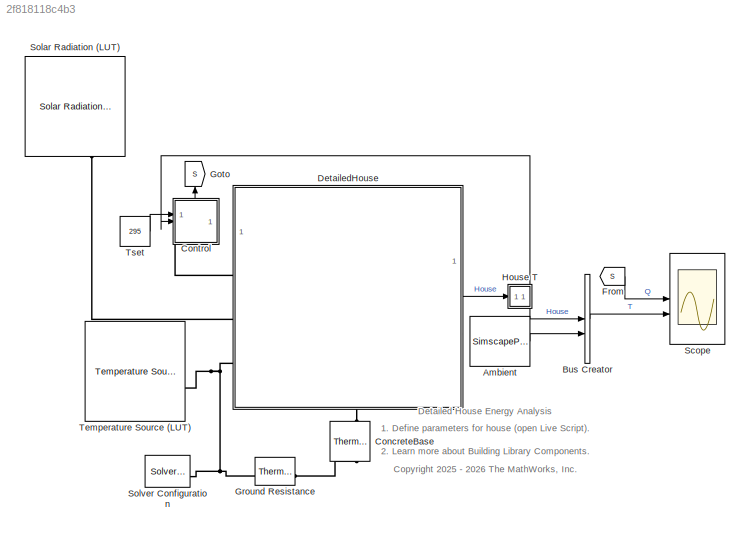
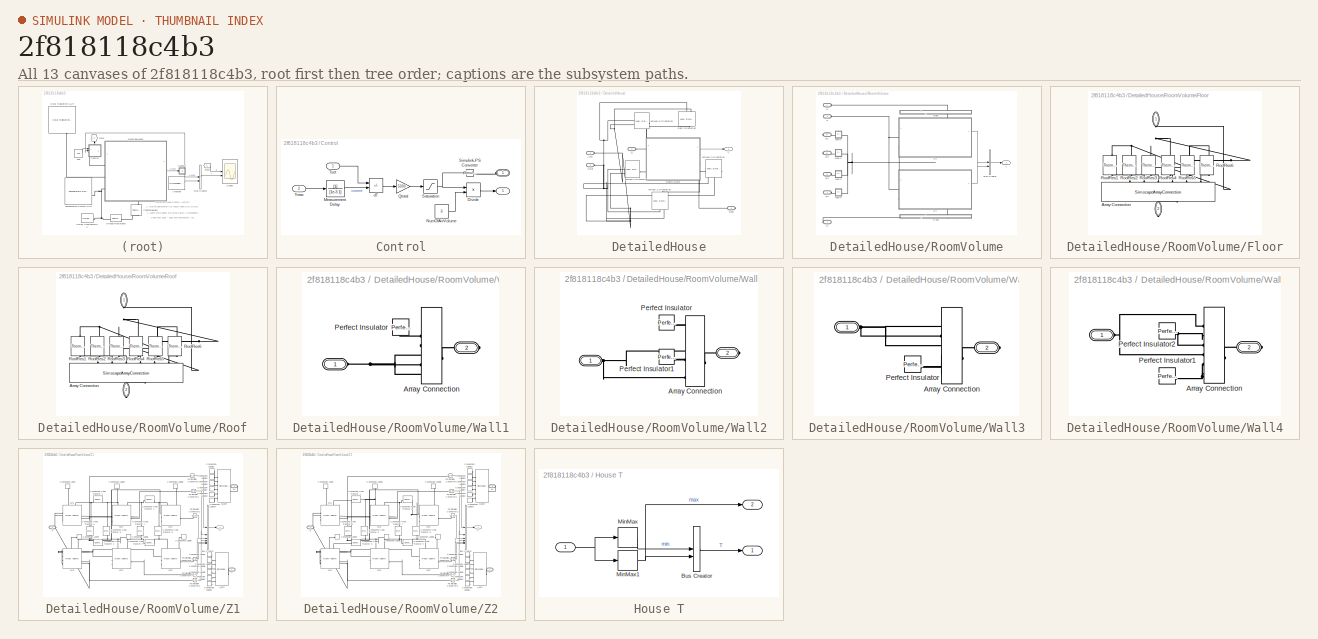
[diagram: thumbnail index - all 13 canvases of the model, root first then tree order]
MODEL slx_2f818118c4b3
KIND model
CONFIG AbsTol = auto
CONFIG EnableMultiTasking = off
CONFIG FixedStep = auto
CONFIG MaxStep = 60
CONFIG MinStep = auto
CONFIG PreLoadFcn = run("DetailedHouseParameters.mlx");
CONFIG RelTol = 1e-3
CONFIG SampleTimeConstraint = Unconstrained
CONFIG SolverName = daessc
CONFIG StartTime = 0.0
CONFIG StopTime = house.operational.datetime.simRunTimeSeconds
BLOCK [SimscapeProbe] Ambient
  BoundBlock = 326
  Variables = {H.T}
BLOCK [BusCreator] Bus Creator
  DisplayOption = bar
  InheritFromInputs = on
  Inputs = 2
BLOCK [Reference] ConcreteBase  REF=fl_lib/Thermal/Thermal Elements/Thermal Mass
  NameLocation = right
  SourceBlock = fl_lib/Thermal/Thermal Elements/Thermal Mass
  SourceType = Thermal Mass
BLOCK [SubSystem] Control
  PortSchema = {"entries":[{"content":{"sides":[{"content":{"connectorIds":["LConn1"]},"type":"ConnectorPlacement.EquallySpacedRectSide","uuid":"bf0d3f6c-4199-48ed-9d1b-942d678a196d"},{"content":{"connectorIds":["In1","In2"],"side":"RIGHT"},"type":"ConnectorPlacement.EquallySpacedRectSide","uuid":"048b5b2b-ccfc-4083-80b1-51c1896923e2"},{"content":{"side":"TOP"},"type":"ConnectorPlacement.EquallySpacedRectSide","...<+380ch>
BLOCK [Outport] Control/ 
BLOCK [PMIOPort] Control/  
  NameLocation = right
  Side = Left
BLOCK [Product] Control/Divide
  Inputs = */
BLOCK [TransferFcn] Control/Measurement Delay
  Denominator = [1e-3 1]
BLOCK [Constant] Control/NumOfAirVolume
  Value = 6
BLOCK [Gain] Control/Qtotal
  Gain = 5000
BLOCK [Saturate] Control/Saturation
  LowerLimit = -2500
  UpperLimit = 2500
BLOCK [Reference] Control/Simulink-PS Converter  REF=nesl_utility/Simulink-PS
Converter
  SourceBlock = nesl_utility/Simulink-PS\nConverter
  SourceType = Simulink-PS\nConverter
BLOCK [Inport] Control/Tmax
  NameLocation = left
  Port = 2
BLOCK [Inport] Control/Tset
  NameLocation = left
BLOCK [Sum] Control/dT
  IconShape = rectangular
  Inputs = +-
BLOCK [SubSystem] DetailedHouse
  NameLocation = top
  PortSchema = {"entries":[{"content":{"sides":[{"content":{"connectorIds":["LConn1","LConn2","LConn3"]},"type":"ConnectorPlacement.EquallySpacedRectSide","uuid":"299cb99e-37c4-4363-a148-c4e2a80bfd54"},{"content":{"connectorIds":["Out1"],"side":"RIGHT"},"type":"ConnectorPlacement.EquallySpacedRectSide","uuid":"2fcdd946-1002-4526-8c08-99e8dc6f4c47"},{"content":{"side":"TOP"},"type":"ConnectorPlacement.EquallySpac...<+395ch>
BLOCK [PMIOPort] DetailedHouse/Amb
  NameLocation = left
  Port = 3
  Side = Left
BLOCK [PMIOPort] DetailedHouse/Floor
  NameLocation = right
  Port = 4
  Side = Right
BLOCK [PMIOPort] DetailedHouse/Q
  NameLocation = left
  Side = Left
BLOCK [Reference] DetailedHouse/Roof Orientation  REF=ExternalWall_lib/Wall External
  NameLocation = right
  SourceBlock = ExternalWall_lib/Wall External
  SourceType = Wall External
BLOCK [SubSystem] DetailedHouse/RoomVolume
  NameLocation = top
  PortSchema = {"entries":[{"content":{"sides":[{"content":{"connectorIds":["LConn1","LConn2"]},"type":"ConnectorPlacement.EquallySpacedRectSide","uuid":"bb55eb80-d4a7-43ce-a7a0-972e6a4ef911"},{"content":{"connectorIds":["Out1","RConn1"],"side":"RIGHT"},"type":"ConnectorPlacement.EquallySpacedRectSide","uuid":"29951cfd-9715-464b-88ca-0c0ac5d49cc2"},{"content":{"connectorIds":["LConn3","LConn4"],"side":"TOP"},"ty...<+439ch>
BLOCK [BusCreator] DetailedHouse/RoomVolume/Bus Creator
  DisplayOption = bar
  InheritFromInputs = on
  Inputs = 2
BLOCK [SubSystem] DetailedHouse/RoomVolume/Floor
  NameLocation = right
BLOCK [PMIOPort] DetailedHouse/RoomVolume/Floor/ 
  NameLocation = left
  Side = Left
BLOCK [PMIOPort] DetailedHouse/RoomVolume/Floor/   
  NameLocation = right
  Port = 2
  Side = Right
BLOCK [SimscapeArrayConnection] DetailedHouse/RoomVolume/Floor/Array Connection
  ConcatenateDimension = 1
  Domain = foundation.thermal.thermal
  NameLocation = left
  NumScalarElements = 6
BLOCK [Reference] DetailedHouse/RoomVolume/Floor/RoofRes1  REF=fl_lib/Thermal/Thermal Elements/Thermal Resistance
  NameLocation = left
  SourceBlock = fl_lib/Thermal/Thermal Elements/Thermal Resistance
  SourceType = Thermal Resistance
BLOCK [Reference] DetailedHouse/RoomVolume/Floor/RoofRes2  REF=fl_lib/Thermal/Thermal Elements/Thermal Resistance
  NameLocation = left
  SourceBlock = fl_lib/Thermal/Thermal Elements/Thermal Resistance
  SourceType = Thermal Resistance
BLOCK [Reference] DetailedHouse/RoomVolume/Floor/RoofRes3  REF=fl_lib/Thermal/Thermal Elements/Thermal Resistance
  NameLocation = left
  SourceBlock = fl_lib/Thermal/Thermal Elements/Thermal Resistance
  SourceType = Thermal Resistance
BLOCK [Reference] DetailedHouse/RoomVolume/Floor/RoofRes4  REF=fl_lib/Thermal/Thermal Elements/Thermal Resistance
  NameLocation = left
  SourceBlock = fl_lib/Thermal/Thermal Elements/Thermal Resistance
  SourceType = Thermal Resistance
BLOCK [Reference] DetailedHouse/RoomVolume/Floor/RoofRes5  REF=fl_lib/Thermal/Thermal Elements/Thermal Resistance
  NameLocation = left
  SourceBlock = fl_lib/Thermal/Thermal Elements/Thermal Resistance
  SourceType = Thermal Resistance
BLOCK [Reference] DetailedHouse/RoomVolume/Floor/RoofRes6  REF=fl_lib/Thermal/Thermal Elements/Thermal Resistance
  NameLocation = left
  SourceBlock = fl_lib/Thermal/Thermal Elements/Thermal Resistance
  SourceType = Thermal Resistance
BLOCK [PMIOPort] DetailedHouse/RoomVolume/G
  NameLocation = left
  Port = 7
  Side = Right
BLOCK [PMIOPort] DetailedHouse/RoomVolume/R
  NameLocation = left
  Port = 4
  Side = Left
BLOCK [SubSystem] DetailedHouse/RoomVolume/Roof
  NameLocation = right
BLOCK [PMIOPort] DetailedHouse/RoomVolume/Roof/ 
  NameLocation = left
  Side = Left
BLOCK [PMIOPort] DetailedHouse/RoomVolume/Roof/   
  NameLocation = right
  Port = 2
  Side = Right
BLOCK [SimscapeArrayConnection] DetailedHouse/RoomVolume/Roof/Array Connection
  ConcatenateDimension = 1
  Domain = foundation.thermal.thermal
  NameLocation = left
  NumScalarElements = 6
BLOCK [Reference] DetailedHouse/RoomVolume/Roof/RoofRes1  REF=fl_lib/Thermal/Thermal Elements/Thermal Resistance
  NameLocation = left
  SourceBlock = fl_lib/Thermal/Thermal Elements/Thermal Resistance
  SourceType = Thermal Resistance
BLOCK [Reference] DetailedHouse/RoomVolume/Roof/RoofRes2  REF=fl_lib/Thermal/Thermal Elements/Thermal Resistance
  NameLocation = left
  SourceBlock = fl_lib/Thermal/Thermal Elements/Thermal Resistance
  SourceType = Thermal Resistance
BLOCK [Reference] DetailedHouse/RoomVolume/Roof/RoofRes3  REF=fl_lib/Thermal/Thermal Elements/Thermal Resistance
  NameLocation = left
  SourceBlock = fl_lib/Thermal/Thermal Elements/Thermal Resistance
  SourceType = Thermal Resistance
BLOCK [Reference] DetailedHouse/RoomVolume/Roof/RoofRes4  REF=fl_lib/Thermal/Thermal Elements/Thermal Resistance
  NameLocation = left
  SourceBlock = fl_lib/Thermal/Thermal Elements/Thermal Resistance
  SourceType = Thermal Resistance
BLOCK [Reference] DetailedHouse/RoomVolume/Roof/RoofRes5  REF=fl_lib/Thermal/Thermal Elements/Thermal Resistance
  NameLocation = left
  SourceBlock = fl_lib/Thermal/Thermal Elements/Thermal Resistance
  SourceType = Thermal Resistance
BLOCK [Reference] DetailedHouse/RoomVolume/Roof/RoofRes6  REF=fl_lib/Thermal/Thermal Elements/Thermal Resistance
  NameLocation = left
  SourceBlock = fl_lib/Thermal/Thermal Elements/Thermal Resistance
  SourceType = Thermal Resistance
BLOCK [PMIOPort] DetailedHouse/RoomVolume/S
  NameLocation = left
  Side = Left
BLOCK [Outport] DetailedHouse/RoomVolume/T
BLOCK [SubSystem] DetailedHouse/RoomVolume/Wall1
BLOCK [PMIOPort] DetailedHouse/RoomVolume/Wall1/ 
  Side = Left
BLOCK [PMIOPort] DetailedHouse/RoomVolume/Wall1/  
  Port = 2
  Side = Right
BLOCK [SimscapeArrayConnection] DetailedHouse/RoomVolume/Wall1/Array Connection
  ConcatenateDimension = 1
  Domain = foundation.thermal.thermal
  NumScalarElements = 6
BLOCK [Reference] DetailedHouse/RoomVolume/Wall1/Perfect Insulator  REF=fl_lib/Thermal/Thermal Elements/Perfect Insulator
  SourceBlock = fl_lib/Thermal/Thermal Elements/Perfect Insulator
  SourceType = Perfect Insulator
BLOCK [SubSystem] DetailedHouse/RoomVolume/Wall2
BLOCK [PMIOPort] DetailedHouse/RoomVolume/Wall2/ 
  Side = Left
BLOCK [PMIOPort] DetailedHouse/RoomVolume/Wall2/  
  Port = 2
  Side = Right
BLOCK [SimscapeArrayConnection] DetailedHouse/RoomVolume/Wall2/Array Connection
  ConcatenateDimension = 1
  Domain = foundation.thermal.thermal
  NumScalarElements = 6
BLOCK [Reference] DetailedHouse/RoomVolume/Wall2/Perfect Insulator  REF=fl_lib/Thermal/Thermal Elements/Perfect Insulator
  SourceBlock = fl_lib/Thermal/Thermal Elements/Perfect Insulator
  SourceType = Perfect Insulator
BLOCK [Reference] DetailedHouse/RoomVolume/Wall2/Perfect Insulator1  REF=fl_lib/Thermal/Thermal Elements/Perfect Insulator
  SourceBlock = fl_lib/Thermal/Thermal Elements/Perfect Insulator
  SourceType = Perfect Insulator
BLOCK [SubSystem] DetailedHouse/RoomVolume/Wall3
BLOCK [PMIOPort] DetailedHouse/RoomVolume/Wall3/ 
  Side = Left
BLOCK [PMIOPort] DetailedHouse/RoomVolume/Wall3/  
  Port = 2
  Side = Right
BLOCK [SimscapeArrayConnection] DetailedHouse/RoomVolume/Wall3/Array Connection
  ConcatenateDimension = 1
  Domain = foundation.thermal.thermal
  NumScalarElements = 6
BLOCK [Reference] DetailedHouse/RoomVolume/Wall3/Perfect Insulator  REF=fl_lib/Thermal/Thermal Elements/Perfect Insulator
  SourceBlock = fl_lib/Thermal/Thermal Elements/Perfect Insulator
  SourceType = Perfect Insulator
BLOCK [SubSystem] DetailedHouse/RoomVolume/Wall4
BLOCK [PMIOPort] DetailedHouse/RoomVolume/Wall4/ 
  Side = Left
BLOCK [PMIOPort] DetailedHouse/RoomVolume/Wall4/  
  Port = 2
  Side = Right
BLOCK [SimscapeArrayConnection] DetailedHouse/RoomVolume/Wall4/Array Connection
  ConcatenateDimension = 1
  Domain = foundation.thermal.thermal
  NumScalarElements = 6
BLOCK [Reference] DetailedHouse/RoomVolume/Wall4/Perfect Insulator1  REF=fl_lib/Thermal/Thermal Elements/Perfect Insulator
  SourceBlock = fl_lib/Thermal/Thermal Elements/Perfect Insulator
  SourceType = Perfect Insulator
BLOCK [Reference] DetailedHouse/RoomVolume/Wall4/Perfect Insulator2  REF=fl_lib/Thermal/Thermal Elements/Perfect Insulator
  SourceBlock = fl_lib/Thermal/Thermal Elements/Perfect Insulator
  SourceType = Perfect Insulator
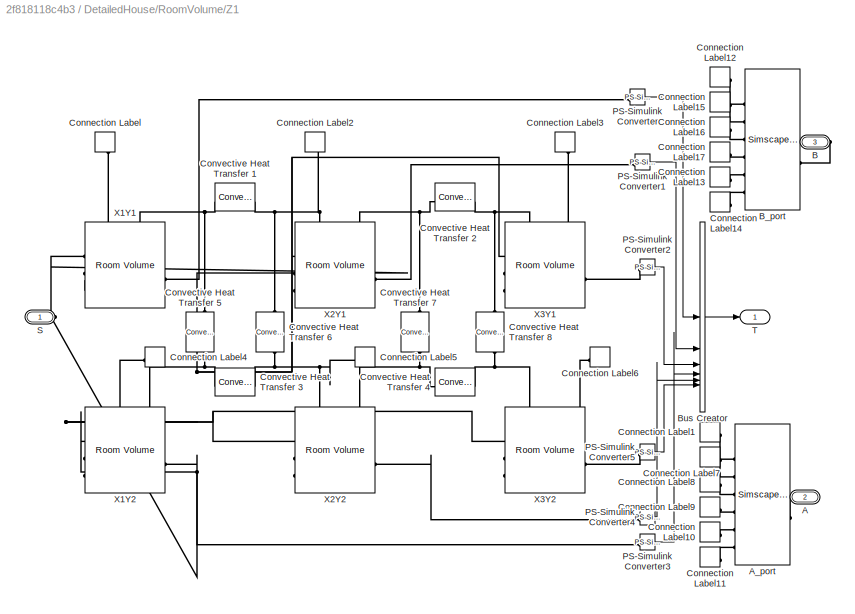
BLOCK [SubSystem] DetailedHouse/RoomVolume/Z1
  PortSchema = {"entries":[{"content":{"sides":[{"content":{"connectorIds":["LConn1"]},"type":"ConnectorPlacement.EquallySpacedRectSide","uuid":"abda2a5f-a08e-4671-9591-108164548e43"},{"content":{"connectorIds":["Out1"],"side":"RIGHT"},"type":"ConnectorPlacement.EquallySpacedRectSide","uuid":"2c40f8a6-94c6-4189-9220-8c37a1cf6112"},{"content":{"connectorIds":["LConn2"],"side":"TOP"},"type":"ConnectorPlacement.Equ...<+403ch>
BLOCK [PMIOPort] DetailedHouse/RoomVolume/Z1/A
  NameLocation = top
  Port = 2
  Side = Left
BLOCK [SimscapeArrayConnection] DetailedHouse/RoomVolume/Z1/A_port
  ConcatenateDimension = 1
  Domain = foundation.thermal.thermal
  NumScalarElements = 6
BLOCK [PMIOPort] DetailedHouse/RoomVolume/Z1/B
  NameLocation = top
  Port = 3
  Side = Right
BLOCK [SimscapeArrayConnection] DetailedHouse/RoomVolume/Z1/B_port
  ConcatenateDimension = 1
  Domain = foundation.thermal.thermal
  NumScalarElements = 6
BLOCK [BusCreator] DetailedHouse/RoomVolume/Z1/Bus Creator
  DisplayOption = bar
  InheritFromInputs = on
  Inputs = 6
BLOCK [ConnectionLabel] DetailedHouse/RoomVolume/Z1/Connection Label
  Label = A1
  NameLocation = right
BLOCK [ConnectionLabel] DetailedHouse/RoomVolume/Z1/Connection Label1
  Label = A1
  NameLocation = top
BLOCK [ConnectionLabel] DetailedHouse/RoomVolume/Z1/Connection Label10
  Label = A5
  NameLocation = top
BLOCK [ConnectionLabel] DetailedHouse/RoomVolume/Z1/Connection Label11
  Label = A6
  NameLocation = top
BLOCK [ConnectionLabel] DetailedHouse/RoomVolume/Z1/Connection Label12
  Label = A1
  NameLocation = top
BLOCK [ConnectionLabel] DetailedHouse/RoomVolume/Z1/Connection Label13
  Label = A5
  NameLocation = top
BLOCK [ConnectionLabel] DetailedHouse/RoomVolume/Z1/Connection Label14
  Label = A6
  NameLocation = top
BLOCK [ConnectionLabel] DetailedHouse/RoomVolume/Z1/Connection Label15
  Label = A2
  NameLocation = top
BLOCK [ConnectionLabel] DetailedHouse/RoomVolume/Z1/Connection Label16
  Label = A3
  NameLocation = top
BLOCK [ConnectionLabel] DetailedHouse/RoomVolume/Z1/Connection Label17
  Label = A4
  NameLocation = top
BLOCK [ConnectionLabel] DetailedHouse/RoomVolume/Z1/Connection Label2
  Label = A2
  NameLocation = right
BLOCK [ConnectionLabel] DetailedHouse/RoomVolume/Z1/Connection Label3
  Label = A3
  NameLocation = right
BLOCK [ConnectionLabel] DetailedHouse/RoomVolume/Z1/Connection Label4
  Label = A4
BLOCK [ConnectionLabel] DetailedHouse/RoomVolume/Z1/Connection Label5
  Label = A5
BLOCK [ConnectionLabel] DetailedHouse/RoomVolume/Z1/Connection Label6
  Label = A6
BLOCK [ConnectionLabel] DetailedHouse/RoomVolume/Z1/Connection Label7
  Label = A2
  NameLocation = top
BLOCK [ConnectionLabel] DetailedHouse/RoomVolume/Z1/Connection Label8
  Label = A3
  NameLocation = top
BLOCK [ConnectionLabel] DetailedHouse/RoomVolume/Z1/Connection Label9
  Label = A4
  NameLocation = top
BLOCK [Reference] DetailedHouse/RoomVolume/Z1/Convective Heat Transfer 1  REF=fl_lib/Thermal/Thermal Elements/Convective Heat
Transfer
  SourceBlock = fl_lib/Thermal/Thermal Elements/Convective Heat\nTransfer
  SourceType = Convective Heat\nTransfer
BLOCK [Reference] DetailedHouse/RoomVolume/Z1/Convective Heat Transfer 2  REF=fl_lib/Thermal/Thermal Elements/Convective Heat
Transfer
  SourceBlock = fl_lib/Thermal/Thermal Elements/Convective Heat\nTransfer
  SourceType = Convective Heat\nTransfer
BLOCK [Reference] DetailedHouse/RoomVolume/Z1/Convective Heat Transfer 3  REF=fl_lib/Thermal/Thermal Elements/Convective Heat
Transfer
  SourceBlock = fl_lib/Thermal/Thermal Elements/Convective Heat\nTransfer
  SourceType = Convective Heat\nTransfer
BLOCK [Reference] DetailedHouse/RoomVolume/Z1/Convective Heat Transfer 4  REF=fl_lib/Thermal/Thermal Elements/Convective Heat
Transfer
  SourceBlock = fl_lib/Thermal/Thermal Elements/Convective Heat\nTransfer
  SourceType = Convective Heat\nTransfer
BLOCK [Reference] DetailedHouse/RoomVolume/Z1/Convective Heat Transfer 5  REF=fl_lib/Thermal/Thermal Elements/Convective Heat
Transfer
  NameLocation = left
  SourceBlock = fl_lib/Thermal/Thermal Elements/Convective Heat\nTransfer
  SourceType = Convective Heat\nTransfer
BLOCK [Reference] DetailedHouse/RoomVolume/Z1/Convective Heat Transfer 6  REF=fl_lib/Thermal/Thermal Elements/Convective Heat
Transfer
  NameLocation = left
  SourceBlock = fl_lib/Thermal/Thermal Elements/Convective Heat\nTransfer
  SourceType = Convective Heat\nTransfer
BLOCK [Reference] DetailedHouse/RoomVolume/Z1/Convective Heat Transfer 7  REF=fl_lib/Thermal/Thermal Elements/Convective Heat
Transfer
  NameLocation = left
  SourceBlock = fl_lib/Thermal/Thermal Elements/Convective Heat\nTransfer
  SourceType = Convective Heat\nTransfer
BLOCK [Reference] DetailedHouse/RoomVolume/Z1/Convective Heat Transfer 8  REF=fl_lib/Thermal/Thermal Elements/Convective Heat
Transfer
  NameLocation = left
  SourceBlock = fl_lib/Thermal/Thermal Elements/Convective Heat\nTransfer
  SourceType = Convective Heat\nTransfer
BLOCK [Reference] DetailedHouse/RoomVolume/Z1/PS-Simulink Converter  REF=nesl_utility/PS-Simulink
Converter
  SourceBlock = nesl_utility/PS-Simulink\nConverter
  SourceType = PS-Simulink\nConverter
BLOCK [Reference] DetailedHouse/RoomVolume/Z1/PS-Simulink Converter1  REF=nesl_utility/PS-Simulink
Converter
  SourceBlock = nesl_utility/PS-Simulink\nConverter
  SourceType = PS-Simulink\nConverter
BLOCK [Reference] DetailedHouse/RoomVolume/Z1/PS-Simulink Converter2  REF=nesl_utility/PS-Simulink
Converter
  SourceBlock = nesl_utility/PS-Simulink\nConverter
  SourceType = PS-Simulink\nConverter
BLOCK [Reference] DetailedHouse/RoomVolume/Z1/PS-Simulink Converter3  REF=nesl_utility/PS-Simulink
Converter
  SourceBlock = nesl_utility/PS-Simulink\nConverter
  SourceType = PS-Simulink\nConverter
BLOCK [Reference] DetailedHouse/RoomVolume/Z1/PS-Simulink Converter4  REF=nesl_utility/PS-Simulink
Converter
  SourceBlock = nesl_utility/PS-Simulink\nConverter
  SourceType = PS-Simulink\nConverter
BLOCK [Reference] DetailedHouse/RoomVolume/Z1/PS-Simulink Converter5  REF=nesl_utility/PS-Simulink
Converter
  SourceBlock = nesl_utility/PS-Simulink\nConverter
  SourceType = PS-Simulink\nConverter
BLOCK [PMIOPort] DetailedHouse/RoomVolume/Z1/S
  Side = Left
BLOCK [Outport] DetailedHouse/RoomVolume/Z1/T
  NameLocation = right
BLOCK [Reference] DetailedHouse/RoomVolume/Z1/X1Y1  REF=RoomVolume_lib/Room Volume
  SourceBlock = RoomVolume_lib/Room Volume
  SourceType = Room Volume
BLOCK [Reference] DetailedHouse/RoomVolume/Z1/X1Y2  REF=RoomVolume_lib/Room Volume
  SourceBlock = RoomVolume_lib/Room Volume
  SourceType = Room Volume
BLOCK [Reference] DetailedHouse/RoomVolume/Z1/X2Y1  REF=RoomVolume_lib/Room Volume
  SourceBlock = RoomVolume_lib/Room Volume
  SourceType = Room Volume
BLOCK [Reference] DetailedHouse/RoomVolume/Z1/X2Y2  REF=RoomVolume_lib/Room Volume
  SourceBlock = RoomVolume_lib/Room Volume
  SourceType = Room Volume
BLOCK [Reference] DetailedHouse/RoomVolume/Z1/X3Y1  REF=RoomVolume_lib/Room Volume
  SourceBlock = RoomVolume_lib/Room Volume
  SourceType = Room Volume
BLOCK [Reference] DetailedHouse/RoomVolume/Z1/X3Y2  REF=RoomVolume_lib/Room Volume
  SourceBlock = RoomVolume_lib/Room Volume
  SourceType = Room Volume
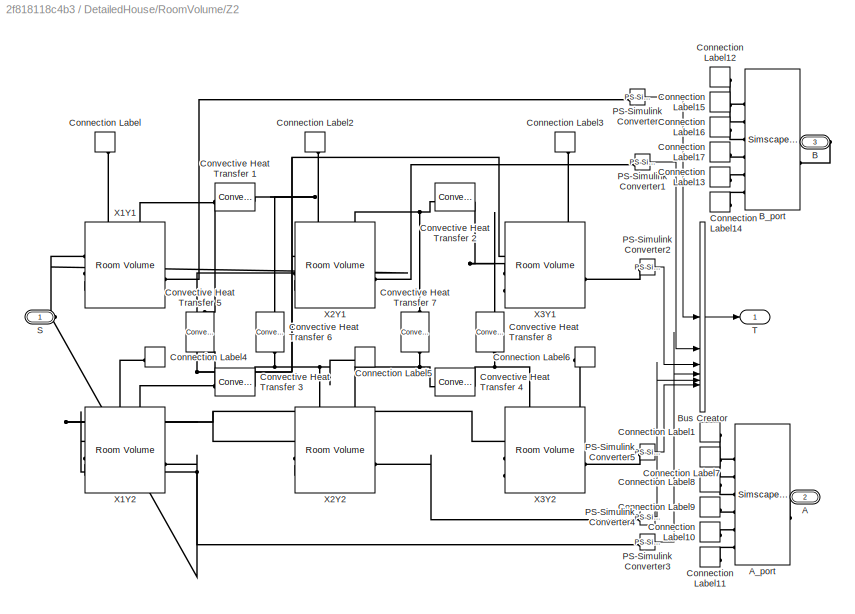
BLOCK [SubSystem] DetailedHouse/RoomVolume/Z2
  PortSchema = {"entries":[{"content":{"sides":[{"content":{"connectorIds":["LConn1"]},"type":"ConnectorPlacement.EquallySpacedRectSide","uuid":"abda2a5f-a08e-4671-9591-108164548e43"},{"content":{"connectorIds":["Out1"],"side":"RIGHT"},"type":"ConnectorPlacement.EquallySpacedRectSide","uuid":"2c40f8a6-94c6-4189-9220-8c37a1cf6112"},{"content":{"connectorIds":["LConn2"],"side":"TOP"},"type":"ConnectorPlacement.Equ...<+403ch>
BLOCK [PMIOPort] DetailedHouse/RoomVolume/Z2/A
  NameLocation = top
  Port = 2
  Side = Left
BLOCK [SimscapeArrayConnection] DetailedHouse/RoomVolume/Z2/A_port
  ConcatenateDimension = 1
  Domain = foundation.thermal.thermal
  NumScalarElements = 6
BLOCK [PMIOPort] DetailedHouse/RoomVolume/Z2/B
  NameLocation = top
  Port = 3
  Side = Right
BLOCK [SimscapeArrayConnection] DetailedHouse/RoomVolume/Z2/B_port
  ConcatenateDimension = 1
  Domain = foundation.thermal.thermal
  NumScalarElements = 6
BLOCK [BusCreator] DetailedHouse/RoomVolume/Z2/Bus Creator
  DisplayOption = bar
  InheritFromInputs = on
  Inputs = 6
BLOCK [ConnectionLabel] DetailedHouse/RoomVolume/Z2/Connection Label
  Label = A1
  NameLocation = right
BLOCK [ConnectionLabel] DetailedHouse/RoomVolume/Z2/Connection Label1
  Label = A1
  NameLocation = top
BLOCK [ConnectionLabel] DetailedHouse/RoomVolume/Z2/Connection Label10
  Label = A5
  NameLocation = top
BLOCK [ConnectionLabel] DetailedHouse/RoomVolume/Z2/Connection Label11
  Label = A6
  NameLocation = top
BLOCK [ConnectionLabel] DetailedHouse/RoomVolume/Z2/Connection Label12
  Label = A1
  NameLocation = top
BLOCK [ConnectionLabel] DetailedHouse/RoomVolume/Z2/Connection Label13
  Label = A5
  NameLocation = top
BLOCK [ConnectionLabel] DetailedHouse/RoomVolume/Z2/Connection Label14
  Label = A6
  NameLocation = top
BLOCK [ConnectionLabel] DetailedHouse/RoomVolume/Z2/Connection Label15
  Label = A2
  NameLocation = top
BLOCK [ConnectionLabel] DetailedHouse/RoomVolume/Z2/Connection Label16
  Label = A3
  NameLocation = top
BLOCK [ConnectionLabel] DetailedHouse/RoomVolume/Z2/Connection Label17
  Label = A4
  NameLocation = top
BLOCK [ConnectionLabel] DetailedHouse/RoomVolume/Z2/Connection Label2
  Label = A2
  NameLocation = right
BLOCK [ConnectionLabel] DetailedHouse/RoomVolume/Z2/Connection Label3
  Label = A3
  NameLocation = right
BLOCK [ConnectionLabel] DetailedHouse/RoomVolume/Z2/Connection Label4
  Label = A4
BLOCK [ConnectionLabel] DetailedHouse/RoomVolume/Z2/Connection Label5
  Label = A5
BLOCK [ConnectionLabel] DetailedHouse/RoomVolume/Z2/Connection Label6
  Label = A6
BLOCK [ConnectionLabel] DetailedHouse/RoomVolume/Z2/Connection Label7
  Label = A2
  NameLocation = top
BLOCK [ConnectionLabel] DetailedHouse/RoomVolume/Z2/Connection Label8
  Label = A3
  NameLocation = top
BLOCK [ConnectionLabel] DetailedHouse/RoomVolume/Z2/Connection Label9
  Label = A4
  NameLocation = top
BLOCK [Reference] DetailedHouse/RoomVolume/Z2/Convective Heat Transfer 1  REF=fl_lib/Thermal/Thermal Elements/Convective Heat
Transfer
  SourceBlock = fl_lib/Thermal/Thermal Elements/Convective Heat\nTransfer
  SourceType = Convective Heat\nTransfer
BLOCK [Reference] DetailedHouse/RoomVolume/Z2/Convective Heat Transfer 2  REF=fl_lib/Thermal/Thermal Elements/Convective Heat
Transfer
  SourceBlock = fl_lib/Thermal/Thermal Elements/Convective Heat\nTransfer
  SourceType = Convective Heat\nTransfer
BLOCK [Reference] DetailedHouse/RoomVolume/Z2/Convective Heat Transfer 3  REF=fl_lib/Thermal/Thermal Elements/Convective Heat
Transfer
  SourceBlock = fl_lib/Thermal/Thermal Elements/Convective Heat\nTransfer
  SourceType = Convective Heat\nTransfer
BLOCK [Reference] DetailedHouse/RoomVolume/Z2/Convective Heat Transfer 4  REF=fl_lib/Thermal/Thermal Elements/Convective Heat
Transfer
  SourceBlock = fl_lib/Thermal/Thermal Elements/Convective Heat\nTransfer
  SourceType = Convective Heat\nTransfer
BLOCK [Reference] DetailedHouse/RoomVolume/Z2/Convective Heat Transfer 5  REF=fl_lib/Thermal/Thermal Elements/Convective Heat
Transfer
  NameLocation = left
  SourceBlock = fl_lib/Thermal/Thermal Elements/Convective Heat\nTransfer
  SourceType = Convective Heat\nTransfer
BLOCK [Reference] DetailedHouse/RoomVolume/Z2/Convective Heat Transfer 6  REF=fl_lib/Thermal/Thermal Elements/Convective Heat
Transfer
  NameLocation = left
  SourceBlock = fl_lib/Thermal/Thermal Elements/Convective Heat\nTransfer
  SourceType = Convective Heat\nTransfer
BLOCK [Reference] DetailedHouse/RoomVolume/Z2/Convective Heat Transfer 7  REF=fl_lib/Thermal/Thermal Elements/Convective Heat
Transfer
  NameLocation = left
  SourceBlock = fl_lib/Thermal/Thermal Elements/Convective Heat\nTransfer
  SourceType = Convective Heat\nTransfer
BLOCK [Reference] DetailedHouse/RoomVolume/Z2/Convective Heat Transfer 8  REF=fl_lib/Thermal/Thermal Elements/Convective Heat
Transfer
  NameLocation = left
  SourceBlock = fl_lib/Thermal/Thermal Elements/Convective Heat\nTransfer
  SourceType = Convective Heat\nTransfer
BLOCK [Reference] DetailedHouse/RoomVolume/Z2/PS-Simulink Converter  REF=nesl_utility/PS-Simulink
Converter
  SourceBlock = nesl_utility/PS-Simulink\nConverter
  SourceType = PS-Simulink\nConverter
BLOCK [Reference] DetailedHouse/RoomVolume/Z2/PS-Simulink Converter1  REF=nesl_utility/PS-Simulink
Converter
  SourceBlock = nesl_utility/PS-Simulink\nConverter
  SourceType = PS-Simulink\nConverter
BLOCK [Reference] DetailedHouse/RoomVolume/Z2/PS-Simulink Converter2  REF=nesl_utility/PS-Simulink
Converter
  SourceBlock = nesl_utility/PS-Simulink\nConverter
  SourceType = PS-Simulink\nConverter
BLOCK [Reference] DetailedHouse/RoomVolume/Z2/PS-Simulink Converter3  REF=nesl_utility/PS-Simulink
Converter
  SourceBlock = nesl_utility/PS-Simulink\nConverter
  SourceType = PS-Simulink\nConverter
BLOCK [Reference] DetailedHouse/RoomVolume/Z2/PS-Simulink Converter4  REF=nesl_utility/PS-Simulink
Converter
  SourceBlock = nesl_utility/PS-Simulink\nConverter
  SourceType = PS-Simulink\nConverter
BLOCK [Reference] DetailedHouse/RoomVolume/Z2/PS-Simulink Converter5  REF=nesl_utility/PS-Simulink
Converter
  SourceBlock = nesl_utility/PS-Simulink\nConverter
  SourceType = PS-Simulink\nConverter
BLOCK [PMIOPort] DetailedHouse/RoomVolume/Z2/S
  Side = Left
BLOCK [Outport] DetailedHouse/RoomVolume/Z2/T
  NameLocation = right
BLOCK [Reference] DetailedHouse/RoomVolume/Z2/X1Y1  REF=RoomVolume_lib/Room Volume
  SourceBlock = RoomVolume_lib/Room Volume
  SourceType = Room Volume
BLOCK [Reference] DetailedHouse/RoomVolume/Z2/X1Y2  REF=RoomVolume_lib/Room Volume
  SourceBlock = RoomVolume_lib/Room Volume
  SourceType = Room Volume
BLOCK [Reference] DetailedHouse/RoomVolume/Z2/X2Y1  REF=RoomVolume_lib/Room Volume
  SourceBlock = RoomVolume_lib/Room Volume
  SourceType = Room Volume
BLOCK [Reference] DetailedHouse/RoomVolume/Z2/X2Y2  REF=RoomVolume_lib/Room Volume
  SourceBlock = RoomVolume_lib/Room Volume
  SourceType = Room Volume
BLOCK [Reference] DetailedHouse/RoomVolume/Z2/X3Y1  REF=RoomVolume_lib/Room Volume
  SourceBlock = RoomVolume_lib/Room Volume
  SourceType = Room Volume
BLOCK [Reference] DetailedHouse/RoomVolume/Z2/X3Y2  REF=RoomVolume_lib/Room Volume
  SourceBlock = RoomVolume_lib/Room Volume
  SourceType = Room Volume
BLOCK [PMIOPort] DetailedHouse/RoomVolume/w1
  NameLocation = left
  Port = 6
  Side = Right
BLOCK [PMIOPort] DetailedHouse/RoomVolume/w2
  NameLocation = left
  Port = 5
  Side = Right
BLOCK [PMIOPort] DetailedHouse/RoomVolume/w3
  NameLocation = left
  Port = 3
  Side = Left
BLOCK [PMIOPort] DetailedHouse/RoomVolume/w4
  NameLocation = left
  Port = 2
  Side = Left
BLOCK [PMIOPort] DetailedHouse/Solar
  NameLocation = left
  Port = 2
  Side = Left
BLOCK [Outport] DetailedHouse/T
  NameLocation = right
BLOCK [Reference] DetailedHouse/extWall1 Orientation  REF=ExternalWall_lib/Wall External
  NameLocation = left
  SourceBlock = ExternalWall_lib/Wall External
  SourceType = Wall External
BLOCK [Reference] DetailedHouse/extWall2 Orientation  REF=ExternalWall_lib/Wall External
  NameLocation = top
  SourceBlock = ExternalWall_lib/Wall External
  SourceType = Wall External
BLOCK [Reference] DetailedHouse/extWall3 Orientation  REF=ExternalWall_lib/Wall External
  SourceBlock = ExternalWall_lib/Wall External
  SourceType = Wall External
BLOCK [Reference] DetailedHouse/extWall4 Orientation  REF=ExternalWall_lib/Wall External
  SourceBlock = ExternalWall_lib/Wall External
  SourceType = Wall External
BLOCK [From] From
  GotoTag = S
BLOCK [Goto] Goto
  GotoTag = S
  NameLocation = right
BLOCK [Reference] Ground Resistance  REF=fl_lib/Thermal/Thermal Elements/Thermal Resistance
  SourceBlock = fl_lib/Thermal/Thermal Elements/Thermal Resistance
  SourceType = Thermal Resistance
BLOCK [SubSystem] House T
  PortSchema = {"entries":[{"content":{"sides":[{"content":{"connectorIds":["In1"]},"type":"ConnectorPlacement.EquallySpacedRectSide","uuid":"77a9471e-f475-4272-a324-d9a4c745a553"},{"content":{"connectorIds":["Out1"],"side":"RIGHT"},"type":"ConnectorPlacement.EquallySpacedRectSide","uuid":"144991d0-730c-43fd-a2ae-35995e9102ff"},{"content":{"connectorIds":["Out2"],"side":"TOP"},"type":"ConnectorPlacement.EquallyS...<+246ch>
BLOCK [Inport] House T/ 
BLOCK [Outport] House T/  
BLOCK [Outport] House T/    
  Port = 2
BLOCK [BusCreator] House T/Bus Creator
  DisplayOption = bar
  InheritFromInputs = on
  Inputs = 2
BLOCK [MinMax] House T/MinMax
BLOCK [MinMax] House T/MinMax1
  Function = max
BLOCK [Scope] Scope
  ActiveDisplayYMaximum = 520.83333333333337
  ActiveDisplayYMinimum = -520.83333333333337
  DataLogging = on
  DataLoggingVariableName = DetailedHouseScopeData
  Floating = off
  GraphicalSettings = {"Style":{"BackgroundColor":[0.12941176470588237,0.12941176470588237,0.12941176470588237],"AxesColor":[0.07058823529411765,0.07058823529411765,0.07058823529411765],"LabelsColor":[0.8509803921568627,0.8509803921568627,0.8509803921568627],"PreserveColors":false,"Visible":[true,true,true,true],"LineStyle":["-","-","-","-"],"LineWidth":[1.5,1.5,1.5,1.5],"BarWidth":[0.9,0.9,0.9,0.9],"LineColor":["auto"...<+2701ch>
  LayoutDimensionsString = [1 2]
  MultipleDisplayCache = [{"MaxYLimMag":520.83333333333337,"MaxYLimReal":520.83333333333337,"MinYLimMag":0,"MinYLimReal":-520.83333333333337,"PlotAsMagnitudePhase":false,"ShowGrid":true,"ShowLegend":true,"Title":"%<SignalLabel>","YLabel":"Q"},{"MaxYLimMag":323.0904940682737,"MaxYLimReal":323.0904940682737,"MinYLimMag":285.95809551346935,"MinYLimReal":285.95809551346935,"PlotAsMagnitudePhase":false,"ShowGrid":true,"ShowLeg...<+49ch>
  NumInputPorts = 2
  ScopeFrameLocation = window
  ShowLegend = on
  WasSavedAsWebScope = on
  WindowPosition = [1070.000000,264.000000,714.000000,628.000000,]
  YLabel = Q
BLOCK [Reference] Solar Radiation (LUT)  REF=SolarRadiationAtLocation_lib/Solar Radiation
(LUT)
  NameLocation = right
  SourceBlock = SolarRadiationAtLocation_lib/Solar Radiation\n(LUT)
  SourceProductName = Simscape Building Energy Management System Library
  SourceType = Solar Radiation\n(LUT)
BLOCK [Reference] Solver Configuration  REF=nesl_utility/Solver
Configuration
  NameLocation = left
  SourceBlock = nesl_utility/Solver\nConfiguration
  SourceType = Solver\nConfiguration
BLOCK [Reference] Temperature Source (LUT)  REF=TemperatureSource_lib/Temperature Source
(LUT)
  SourceBlock = TemperatureSource_lib/Temperature Source\n(LUT)
  SourceType = Temperature Source\n(LUT)
BLOCK [Constant] Tset
  Value = 295
ANNOTATION (root): 1. Define parameters for house ( open Live Script ). 2. Learn more about Building Library Components .
ANNOTATION (root): <copyright redacted>
ANNOTATION (root): Detailed House Energy Analysis
LINE Ambient:1 -> Bus Creator:2
LINE Bus Creator:1 -> Scope:2
LINE Control/Divide:1 -> Control/ :1
LINE Control/Measurement Delay:1 -> Control/dT:2
LINE Control/NumOfAirVolume:1 -> Control/Divide:2
LINE Control/Qtotal:1 -> Control/Saturation:1
NET Control/Saturation:1 -> Control/Divide:1, Control/Simulink-PS Converter:1
LINE Control/Tmax:1 -> Control/Measurement Delay:1
LINE Control/Tset:1 -> Control/dT:1
LINE Control/dT:1 -> Control/Qtotal:1
LINE Control:1 -> Goto:1
LINE DetailedHouse/RoomVolume/Bus Creator:1 -> DetailedHouse/RoomVolume/T:1
LINE DetailedHouse/RoomVolume/Z1/Bus Creator:1 -> DetailedHouse/RoomVolume/Z1/T:1
LINE DetailedHouse/RoomVolume/Z1/PS-Simulink Converter1:1 -> DetailedHouse/RoomVolume/Z1/Bus Creator:2
LINE DetailedHouse/RoomVolume/Z1/PS-Simulink Converter2:1 -> DetailedHouse/RoomVolume/Z1/Bus Creator:3
LINE DetailedHouse/RoomVolume/Z1/PS-Simulink Converter3:1 -> DetailedHouse/RoomVolume/Z1/Bus Creator:4
LINE DetailedHouse/RoomVolume/Z1/PS-Simulink Converter4:1 -> DetailedHouse/RoomVolume/Z1/Bus Creator:5
LINE DetailedHouse/RoomVolume/Z1/PS-Simulink Converter5:1 -> DetailedHouse/RoomVolume/Z1/Bus Creator:6
LINE DetailedHouse/RoomVolume/Z1/PS-Simulink Converter:1 -> DetailedHouse/RoomVolume/Z1/Bus Creator:1
LINE DetailedHouse/RoomVolume/Z1:1 -> DetailedHouse/RoomVolume/Bus Creator:2
LINE DetailedHouse/RoomVolume/Z2/Bus Creator:1 -> DetailedHouse/RoomVolume/Z2/T:1
LINE DetailedHouse/RoomVolume/Z2/PS-Simulink Converter1:1 -> DetailedHouse/RoomVolume/Z2/Bus Creator:2
LINE DetailedHouse/RoomVolume/Z2/PS-Simulink Converter2:1 -> DetailedHouse/RoomVolume/Z2/Bus Creator:3
LINE DetailedHouse/RoomVolume/Z2/PS-Simulink Converter3:1 -> DetailedHouse/RoomVolume/Z2/Bus Creator:4
LINE DetailedHouse/RoomVolume/Z2/PS-Simulink Converter4:1 -> DetailedHouse/RoomVolume/Z2/Bus Creator:5
LINE DetailedHouse/RoomVolume/Z2/PS-Simulink Converter5:1 -> DetailedHouse/RoomVolume/Z2/Bus Creator:6
LINE DetailedHouse/RoomVolume/Z2/PS-Simulink Converter:1 -> DetailedHouse/RoomVolume/Z2/Bus Creator:1
LINE DetailedHouse/RoomVolume/Z2:1 -> DetailedHouse/RoomVolume/Bus Creator:1
LINE DetailedHouse/RoomVolume:1 -> DetailedHouse/T:1
LINE DetailedHouse:1 -> House T:1
LINE From:1 -> Scope:1
NET House T/ :1 -> House T/MinMax1:1, House T/MinMax:1
LINE House T/Bus Creator:1 -> House T/  :1
NET House T/MinMax1:1 -> House T/    :1, House T/Bus Creator:2
LINE House T/MinMax:1 -> House T/Bus Creator:1
LINE House T:1 -> Bus Creator:1
LINE House T:2 -> Control:2
LINE Tset:1 -> Control:1
PLINE ConcreteBase:LConn1 -- DetailedHouse:RConn1
PLINE ConcreteBase:RConn1 -- Ground Resistance:RConn1
PLINE Control/  :RConn1 -- Control/Simulink-PS Converter:RConn1
PLINE Control:LConn1 -- DetailedHouse:LConn1
PNET net1: DetailedHouse/Amb:RConn1 -- DetailedHouse/Roof Orientation:LConn2 -- DetailedHouse/extWall1 Orientation:LConn2 -- DetailedHouse/extWall2 Orientation:LConn2 -- DetailedHouse/extWall3 Orientation:LConn2 -- DetailedHouse/extWall4 Orientation:LConn2
PLINE DetailedHouse/Floor:RConn1 -- DetailedHouse/RoomVolume:RConn3
PLINE DetailedHouse/Q:RConn1 -- DetailedHouse/RoomVolume:LConn1
PNET net2: DetailedHouse/Roof Orientation:LConn1 -- DetailedHouse/Solar:RConn1 -- DetailedHouse/extWall1 Orientation:LConn1 -- DetailedHouse/extWall2 Orientation:LConn1 -- DetailedHouse/extWall3 Orientation:LConn1 -- DetailedHouse/extWall4 Orientation:LConn1
PLINE DetailedHouse/Roof Orientation:RConn1 -- DetailedHouse/RoomVolume:LConn4
PLINE DetailedHouse/RoomVolume/Floor/   :RConn1 -- DetailedHouse/RoomVolume/Floor/Array Connection:RConn1
PNET net3: DetailedHouse/RoomVolume/Floor/ :RConn1 -- DetailedHouse/RoomVolume/Floor/RoofRes1:LConn1 -- DetailedHouse/RoomVolume/Floor/RoofRes2:LConn1 -- DetailedHouse/RoomVolume/Floor/RoofRes3:LConn1 -- DetailedHouse/RoomVolume/Floor/RoofRes4:LConn1 -- DetailedHouse/RoomVolume/Floor/RoofRes5:LConn1 -- DetailedHouse/RoomVolume/Floor/RoofRes6:LConn1
PLINE DetailedHouse/RoomVolume/Floor/Array Connection:LConn1 -- DetailedHouse/RoomVolume/Floor/RoofRes1:RConn1
PLINE DetailedHouse/RoomVolume/Floor/Array Connection:LConn2 -- DetailedHouse/RoomVolume/Floor/RoofRes2:RConn1
PLINE DetailedHouse/RoomVolume/Floor/Array Connection:LConn3 -- DetailedHouse/RoomVolume/Floor/RoofRes3:RConn1
PLINE DetailedHouse/RoomVolume/Floor/Array Connection:LConn4 -- DetailedHouse/RoomVolume/Floor/RoofRes4:RConn1
PLINE DetailedHouse/RoomVolume/Floor/Array Connection:LConn5 -- DetailedHouse/RoomVolume/Floor/RoofRes5:RConn1
PLINE DetailedHouse/RoomVolume/Floor/Array Connection:LConn6 -- DetailedHouse/RoomVolume/Floor/RoofRes6:RConn1
PLINE DetailedHouse/RoomVolume/Floor:LConn1 -- DetailedHouse/RoomVolume/G:RConn1
PLINE DetailedHouse/RoomVolume/Floor:RConn1 -- DetailedHouse/RoomVolume/Z1:RConn1
PLINE DetailedHouse/RoomVolume/R:RConn1 -- DetailedHouse/RoomVolume/Roof:LConn1
PLINE DetailedHouse/RoomVolume/Roof/   :RConn1 -- DetailedHouse/RoomVolume/Roof/Array Connection:RConn1
PNET net4: DetailedHouse/RoomVolume/Roof/ :RConn1 -- DetailedHouse/RoomVolume/Roof/RoofRes1:LConn1 -- DetailedHouse/RoomVolume/Roof/RoofRes2:LConn1 -- DetailedHouse/RoomVolume/Roof/RoofRes3:LConn1 -- DetailedHouse/RoomVolume/Roof/RoofRes4:LConn1 -- DetailedHouse/RoomVolume/Roof/RoofRes5:LConn1 -- DetailedHouse/RoomVolume/Roof/RoofRes6:LConn1
PLINE DetailedHouse/RoomVolume/Roof/Array Connection:LConn1 -- DetailedHouse/RoomVolume/Roof/RoofRes1:RConn1
PLINE DetailedHouse/RoomVolume/Roof/Array Connection:LConn2 -- DetailedHouse/RoomVolume/Roof/RoofRes2:RConn1
PLINE DetailedHouse/RoomVolume/Roof/Array Connection:LConn3 -- DetailedHouse/RoomVolume/Roof/RoofRes3:RConn1
PLINE DetailedHouse/RoomVolume/Roof/Array Connection:LConn4 -- DetailedHouse/RoomVolume/Roof/RoofRes4:RConn1
PLINE DetailedHouse/RoomVolume/Roof/Array Connection:LConn5 -- DetailedHouse/RoomVolume/Roof/RoofRes5:RConn1
PLINE DetailedHouse/RoomVolume/Roof/Array Connection:LConn6 -- DetailedHouse/RoomVolume/Roof/RoofRes6:RConn1
PLINE DetailedHouse/RoomVolume/Roof:RConn1 -- DetailedHouse/RoomVolume/Z2:LConn2
PNET net5: DetailedHouse/RoomVolume/S:RConn1 -- DetailedHouse/RoomVolume/Z1:LConn1 -- DetailedHouse/RoomVolume/Z2:LConn1
PLINE DetailedHouse/RoomVolume/Wall1/  :RConn1 -- DetailedHouse/RoomVolume/Wall1/Array Connection:RConn1
PNET net6: DetailedHouse/RoomVolume/Wall1/ :RConn1 -- DetailedHouse/RoomVolume/Wall1/Array Connection:LConn4 -- DetailedHouse/RoomVolume/Wall1/Array Connection:LConn5 -- DetailedHouse/RoomVolume/Wall1/Array Connection:LConn6
PNET net7: DetailedHouse/RoomVolume/Wall1/Array Connection:LConn1 -- DetailedHouse/RoomVolume/Wall1/Array Connection:LConn2 -- DetailedHouse/RoomVolume/Wall1/Array Connection:LConn3 -- DetailedHouse/RoomVolume/Wall1/Perfect Insulator:LConn1
PLINE DetailedHouse/RoomVolume/Wall1:LConn1 -- DetailedHouse/RoomVolume/w1:RConn1
PNET net8: DetailedHouse/RoomVolume/Wall1:RConn1 -- DetailedHouse/RoomVolume/Wall2:RConn1 -- DetailedHouse/RoomVolume/Wall3:RConn1 -- DetailedHouse/RoomVolume/Wall4:RConn1 -- DetailedHouse/RoomVolume/Z1:LConn2 -- DetailedHouse/RoomVolume/Z2:RConn1
PLINE DetailedHouse/RoomVolume/Wall2/  :RConn1 -- DetailedHouse/RoomVolume/Wall2/Array Connection:RConn1
PNET net9: DetailedHouse/RoomVolume/Wall2/ :RConn1 -- DetailedHouse/RoomVolume/Wall2/Array Connection:LConn3 -- DetailedHouse/RoomVolume/Wall2/Array Connection:LConn6
PNET net10: DetailedHouse/RoomVolume/Wall2/Array Connection:LConn1 -- DetailedHouse/RoomVolume/Wall2/Array Connection:LConn2 -- DetailedHouse/RoomVolume/Wall2/Perfect Insulator:LConn1
PNET net11: DetailedHouse/RoomVolume/Wall2/Array Connection:LConn4 -- DetailedHouse/RoomVolume/Wall2/Array Connection:LConn5 -- DetailedHouse/RoomVolume/Wall2/Perfect Insulator1:LConn1
PLINE DetailedHouse/RoomVolume/Wall2:LConn1 -- DetailedHouse/RoomVolume/w2:RConn1
PLINE DetailedHouse/RoomVolume/Wall3/  :RConn1 -- DetailedHouse/RoomVolume/Wall3/Array Connection:RConn1
PNET net12: DetailedHouse/RoomVolume/Wall3/ :RConn1 -- DetailedHouse/RoomVolume/Wall3/Array Connection:LConn1 -- DetailedHouse/RoomVolume/Wall3/Array Connection:LConn2 -- DetailedHouse/RoomVolume/Wall3/Array Connection:LConn3
PNET net13: DetailedHouse/RoomVolume/Wall3/Array Connection:LConn4 -- DetailedHouse/RoomVolume/Wall3/Array Connection:LConn5 -- DetailedHouse/RoomVolume/Wall3/Array Connection:LConn6 -- DetailedHouse/RoomVolume/Wall3/Perfect Insulator:LConn1
PLINE DetailedHouse/RoomVolume/Wall3:LConn1 -- DetailedHouse/RoomVolume/w3:RConn1
PLINE DetailedHouse/RoomVolume/Wall4/  :RConn1 -- DetailedHouse/RoomVolume/Wall4/Array Connection:RConn1
PNET net14: DetailedHouse/RoomVolume/Wall4/ :RConn1 -- DetailedHouse/RoomVolume/Wall4/Array Connection:LConn1 -- DetailedHouse/RoomVolume/Wall4/Array Connection:LConn4
PNET net15: DetailedHouse/RoomVolume/Wall4/Array Connection:LConn2 -- DetailedHouse/RoomVolume/Wall4/Array Connection:LConn3 -- DetailedHouse/RoomVolume/Wall4/Perfect Insulator2:LConn1
PNET net16: DetailedHouse/RoomVolume/Wall4/Array Connection:LConn5 -- DetailedHouse/RoomVolume/Wall4/Array Connection:LConn6 -- DetailedHouse/RoomVolume/Wall4/Perfect Insulator1:LConn1
PLINE DetailedHouse/RoomVolume/Wall4:LConn1 -- DetailedHouse/RoomVolume/w4:RConn1
PLINE DetailedHouse/RoomVolume/Z1/A:RConn1 -- DetailedHouse/RoomVolume/Z1/A_port:RConn1
PLINE DetailedHouse/RoomVolume/Z1/A_port:LConn1 -- DetailedHouse/RoomVolume/Z1/Connection Label1:LConn1
PLINE DetailedHouse/RoomVolume/Z1/A_port:LConn2 -- DetailedHouse/RoomVolume/Z1/Connection Label7:LConn1
PLINE DetailedHouse/RoomVolume/Z1/A_port:LConn3 -- DetailedHouse/RoomVolume/Z1/Connection Label8:LConn1
PLINE DetailedHouse/RoomVolume/Z1/A_port:LConn4 -- DetailedHouse/RoomVolume/Z1/Connection Label9:LConn1
PLINE DetailedHouse/RoomVolume/Z1/A_port:LConn5 -- DetailedHouse/RoomVolume/Z1/Connection Label10:LConn1
PLINE DetailedHouse/RoomVolume/Z1/A_port:LConn6 -- DetailedHouse/RoomVolume/Z1/Connection Label11:LConn1
PLINE DetailedHouse/RoomVolume/Z1/B:RConn1 -- DetailedHouse/RoomVolume/Z1/B_port:RConn1
PLINE DetailedHouse/RoomVolume/Z1/B_port:LConn1 -- DetailedHouse/RoomVolume/Z1/Connection Label12:LConn1
PLINE DetailedHouse/RoomVolume/Z1/B_port:LConn2 -- DetailedHouse/RoomVolume/Z1/Connection Label15:LConn1
PLINE DetailedHouse/RoomVolume/Z1/B_port:LConn3 -- DetailedHouse/RoomVolume/Z1/Connection Label16:LConn1
PLINE DetailedHouse/RoomVolume/Z1/B_port:LConn4 -- DetailedHouse/RoomVolume/Z1/Connection Label17:LConn1
PLINE DetailedHouse/RoomVolume/Z1/B_port:LConn5 -- DetailedHouse/RoomVolume/Z1/Connection Label13:LConn1
PLINE DetailedHouse/RoomVolume/Z1/B_port:LConn6 -- DetailedHouse/RoomVolume/Z1/Connection Label14:LConn1
PNET net17: DetailedHouse/RoomVolume/Z1/Connection Label2:LConn1 -- DetailedHouse/RoomVolume/Z1/Convective Heat Transfer 1:RConn1 -- DetailedHouse/RoomVolume/Z1/Convective Heat Transfer 6:LConn1 -- DetailedHouse/RoomVolume/Z1/X2Y1:LConn2
PLINE DetailedHouse/RoomVolume/Z1/Connection Label3:LConn1 -- DetailedHouse/RoomVolume/Z1/X3Y1:LConn3
PLINE DetailedHouse/RoomVolume/Z1/Connection Label4:LConn1 -- DetailedHouse/RoomVolume/Z1/X1Y2:LConn2
PNET net18: DetailedHouse/RoomVolume/Z1/Connection Label5:LConn1 -- DetailedHouse/RoomVolume/Z1/Convective Heat Transfer 3:RConn1 -- DetailedHouse/RoomVolume/Z1/Convective Heat Transfer 6:RConn1 -- DetailedHouse/RoomVolume/Z1/X2Y2:LConn2
PLINE DetailedHouse/RoomVolume/Z1/Connection Label6:LConn1 -- DetailedHouse/RoomVolume/Z1/X3Y2:LConn3
PLINE DetailedHouse/RoomVolume/Z1/Connection Label:LConn1 -- DetailedHouse/RoomVolume/Z1/X1Y1:LConn2
PNET net19: DetailedHouse/RoomVolume/Z1/Convective Heat Transfer 1:LConn1 -- DetailedHouse/RoomVolume/Z1/Convective Heat Transfer 5:LConn1 -- DetailedHouse/RoomVolume/Z1/X1Y1:LConn3
PNET net20: DetailedHouse/RoomVolume/Z1/Convective Heat Transfer 2:LConn1 -- DetailedHouse/RoomVolume/Z1/Convective Heat Transfer 7:LConn1 -- DetailedHouse/RoomVolume/Z1/X2Y1:LConn3
PNET net21: DetailedHouse/RoomVolume/Z1/Convective Heat Transfer 2:RConn1 -- DetailedHouse/RoomVolume/Z1/Convective Heat Transfer 8:LConn1 -- DetailedHouse/RoomVolume/Z1/X3Y1:LConn2
PNET net22: DetailedHouse/RoomVolume/Z1/Convective Heat Transfer 3:LConn1 -- DetailedHouse/RoomVolume/Z1/Convective Heat Transfer 5:RConn1 -- DetailedHouse/RoomVolume/Z1/X1Y2:LConn3
PNET net23: DetailedHouse/RoomVolume/Z1/Convective Heat Transfer 4:LConn1 -- DetailedHouse/RoomVolume/Z1/Convective Heat Transfer 7:RConn1 -- DetailedHouse/RoomVolume/Z1/X2Y2:LConn3
PNET net24: DetailedHouse/RoomVolume/Z1/Convective Heat Transfer 4:RConn1 -- DetailedHouse/RoomVolume/Z1/Convective Heat Transfer 8:RConn1 -- DetailedHouse/RoomVolume/Z1/X3Y2:LConn2
PLINE DetailedHouse/RoomVolume/Z1/PS-Simulink Converter1:LConn1 -- DetailedHouse/RoomVolume/Z1/X2Y1:RConn1
PLINE DetailedHouse/RoomVolume/Z1/PS-Simulink Converter2:LConn1 -- DetailedHouse/RoomVolume/Z1/X3Y1:RConn1
PLINE DetailedHouse/RoomVolume/Z1/PS-Simulink Converter3:LConn1 -- DetailedHouse/RoomVolume/Z1/X1Y2:RConn1
PLINE DetailedHouse/RoomVolume/Z1/PS-Simulink Converter4:LConn1 -- DetailedHouse/RoomVolume/Z1/X2Y2:RConn1
PLINE DetailedHouse/RoomVolume/Z1/PS-Simulink Converter5:LConn1 -- DetailedHouse/RoomVolume/Z1/X3Y2:RConn1
PLINE DetailedHouse/RoomVolume/Z1/PS-Simulink Converter:LConn1 -- DetailedHouse/RoomVolume/Z1/X1Y1:RConn1
PNET net25: DetailedHouse/RoomVolume/Z1/S:RConn1 -- DetailedHouse/RoomVolume/Z1/X1Y1:LConn1 -- DetailedHouse/RoomVolume/Z1/X1Y2:LConn1 -- DetailedHouse/RoomVolume/Z1/X2Y1:LConn1 -- DetailedHouse/RoomVolume/Z1/X2Y2:LConn1 -- DetailedHouse/RoomVolume/Z1/X3Y1:LConn1 -- DetailedHouse/RoomVolume/Z1/X3Y2:LConn1
PLINE DetailedHouse/RoomVolume/Z2/A:RConn1 -- DetailedHouse/RoomVolume/Z2/A_port:RConn1
PLINE DetailedHouse/RoomVolume/Z2/A_port:LConn1 -- DetailedHouse/RoomVolume/Z2/Connection Label1:LConn1
PLINE DetailedHouse/RoomVolume/Z2/A_port:LConn2 -- DetailedHouse/RoomVolume/Z2/Connection Label7:LConn1
PLINE DetailedHouse/RoomVolume/Z2/A_port:LConn3 -- DetailedHouse/RoomVolume/Z2/Connection Label8:LConn1
PLINE DetailedHouse/RoomVolume/Z2/A_port:LConn4 -- DetailedHouse/RoomVolume/Z2/Connection Label9:LConn1
PLINE DetailedHouse/RoomVolume/Z2/A_port:LConn5 -- DetailedHouse/RoomVolume/Z2/Connection Label10:LConn1
PLINE DetailedHouse/RoomVolume/Z2/A_port:LConn6 -- DetailedHouse/RoomVolume/Z2/Connection Label11:LConn1
PLINE DetailedHouse/RoomVolume/Z2/B:RConn1 -- DetailedHouse/RoomVolume/Z2/B_port:RConn1
PLINE DetailedHouse/RoomVolume/Z2/B_port:LConn1 -- DetailedHouse/RoomVolume/Z2/Connection Label12:LConn1
PLINE DetailedHouse/RoomVolume/Z2/B_port:LConn2 -- DetailedHouse/RoomVolume/Z2/Connection Label15:LConn1
PLINE DetailedHouse/RoomVolume/Z2/B_port:LConn3 -- DetailedHouse/RoomVolume/Z2/Connection Label16:LConn1
PLINE DetailedHouse/RoomVolume/Z2/B_port:LConn4 -- DetailedHouse/RoomVolume/Z2/Connection Label17:LConn1
PLINE DetailedHouse/RoomVolume/Z2/B_port:LConn5 -- DetailedHouse/RoomVolume/Z2/Connection Label13:LConn1
PLINE DetailedHouse/RoomVolume/Z2/B_port:LConn6 -- DetailedHouse/RoomVolume/Z2/Connection Label14:LConn1
PNET net26: DetailedHouse/RoomVolume/Z2/Connection Label2:LConn1 -- DetailedHouse/RoomVolume/Z2/Convective Heat Transfer 1:RConn1 -- DetailedHouse/RoomVolume/Z2/Convective Heat Transfer 6:LConn1 -- DetailedHouse/RoomVolume/Z2/X2Y1:LConn2
PLINE DetailedHouse/RoomVolume/Z2/Connection Label3:LConn1 -- DetailedHouse/RoomVolume/Z2/X3Y1:LConn3
PLINE DetailedHouse/RoomVolume/Z2/Connection Label4:LConn1 -- DetailedHouse/RoomVolume/Z2/X1Y2:LConn2
PNET net27: DetailedHouse/RoomVolume/Z2/Connection Label5:LConn1 -- DetailedHouse/RoomVolume/Z2/Convective Heat Transfer 3:RConn1 -- DetailedHouse/RoomVolume/Z2/Convective Heat Transfer 6:RConn1 -- DetailedHouse/RoomVolume/Z2/X2Y2:LConn2
PLINE DetailedHouse/RoomVolume/Z2/Connection Label6:LConn1 -- DetailedHouse/RoomVolume/Z2/X3Y2:LConn3
PLINE DetailedHouse/RoomVolume/Z2/Connection Label:LConn1 -- DetailedHouse/RoomVolume/Z2/X1Y1:LConn2
PNET net28: DetailedHouse/RoomVolume/Z2/Convective Heat Transfer 1:LConn1 -- DetailedHouse/RoomVolume/Z2/Convective Heat Transfer 5:LConn1 -- DetailedHouse/RoomVolume/Z2/X1Y1:LConn3
PNET net29: DetailedHouse/RoomVolume/Z2/Convective Heat Transfer 2:LConn1 -- DetailedHouse/RoomVolume/Z2/Convective Heat Transfer 7:LConn1 -- DetailedHouse/RoomVolume/Z2/X2Y1:LConn3
PNET net30: DetailedHouse/RoomVolume/Z2/Convective Heat Transfer 2:RConn1 -- DetailedHouse/RoomVolume/Z2/Convective Heat Transfer 8:LConn1 -- DetailedHouse/RoomVolume/Z2/X3Y1:LConn2
PNET net31: DetailedHouse/RoomVolume/Z2/Convective Heat Transfer 3:LConn1 -- DetailedHouse/RoomVolume/Z2/Convective Heat Transfer 5:RConn1 -- DetailedHouse/RoomVolume/Z2/X1Y2:LConn3
PNET net32: DetailedHouse/RoomVolume/Z2/Convective Heat Transfer 4:LConn1 -- DetailedHouse/RoomVolume/Z2/Convective Heat Transfer 7:RConn1 -- DetailedHouse/RoomVolume/Z2/X2Y2:LConn3
PNET net33: DetailedHouse/RoomVolume/Z2/Convective Heat Transfer 4:RConn1 -- DetailedHouse/RoomVolume/Z2/Convective Heat Transfer 8:RConn1 -- DetailedHouse/RoomVolume/Z2/X3Y2:LConn2
PLINE DetailedHouse/RoomVolume/Z2/PS-Simulink Converter1:LConn1 -- DetailedHouse/RoomVolume/Z2/X2Y1:RConn1
PLINE DetailedHouse/RoomVolume/Z2/PS-Simulink Converter2:LConn1 -- DetailedHouse/RoomVolume/Z2/X3Y1:RConn1
PLINE DetailedHouse/RoomVolume/Z2/PS-Simulink Converter3:LConn1 -- DetailedHouse/RoomVolume/Z2/X1Y2:RConn1
PLINE DetailedHouse/RoomVolume/Z2/PS-Simulink Converter4:LConn1 -- DetailedHouse/RoomVolume/Z2/X2Y2:RConn1
PLINE DetailedHouse/RoomVolume/Z2/PS-Simulink Converter5:LConn1 -- DetailedHouse/RoomVolume/Z2/X3Y2:RConn1
PLINE DetailedHouse/RoomVolume/Z2/PS-Simulink Converter:LConn1 -- DetailedHouse/RoomVolume/Z2/X1Y1:RConn1
PNET net34: DetailedHouse/RoomVolume/Z2/S:RConn1 -- DetailedHouse/RoomVolume/Z2/X1Y1:LConn1 -- DetailedHouse/RoomVolume/Z2/X1Y2:LConn1 -- DetailedHouse/RoomVolume/Z2/X2Y1:LConn1 -- DetailedHouse/RoomVolume/Z2/X2Y2:LConn1 -- DetailedHouse/RoomVolume/Z2/X3Y1:LConn1 -- DetailedHouse/RoomVolume/Z2/X3Y2:LConn1
PLINE DetailedHouse/RoomVolume:LConn2 -- DetailedHouse/extWall4 Orientation:RConn1
PLINE DetailedHouse/RoomVolume:LConn3 -- DetailedHouse/extWall3 Orientation:RConn1
PLINE DetailedHouse/RoomVolume:RConn1 -- DetailedHouse/extWall2 Orientation:RConn1
PLINE DetailedHouse/RoomVolume:RConn2 -- DetailedHouse/extWall1 Orientation:RConn1
PLINE DetailedHouse:LConn2 -- Solar Radiation (LUT):RConn1
PNET net35: DetailedHouse:LConn3 -- Ground Resistance:LConn1 -- Solver Configuration:RConn1 -- Temperature Source (LUT):RConn1
note: NET lines group one-source signal fan-out (src -> all destinations, sorted); 1:1 wires keep LINE; PNET lines group multi-terminal physical nets as a canonical sorted terminal list (undirected conserving connections); 2-terminal nets keep the pairwise PLINE form
